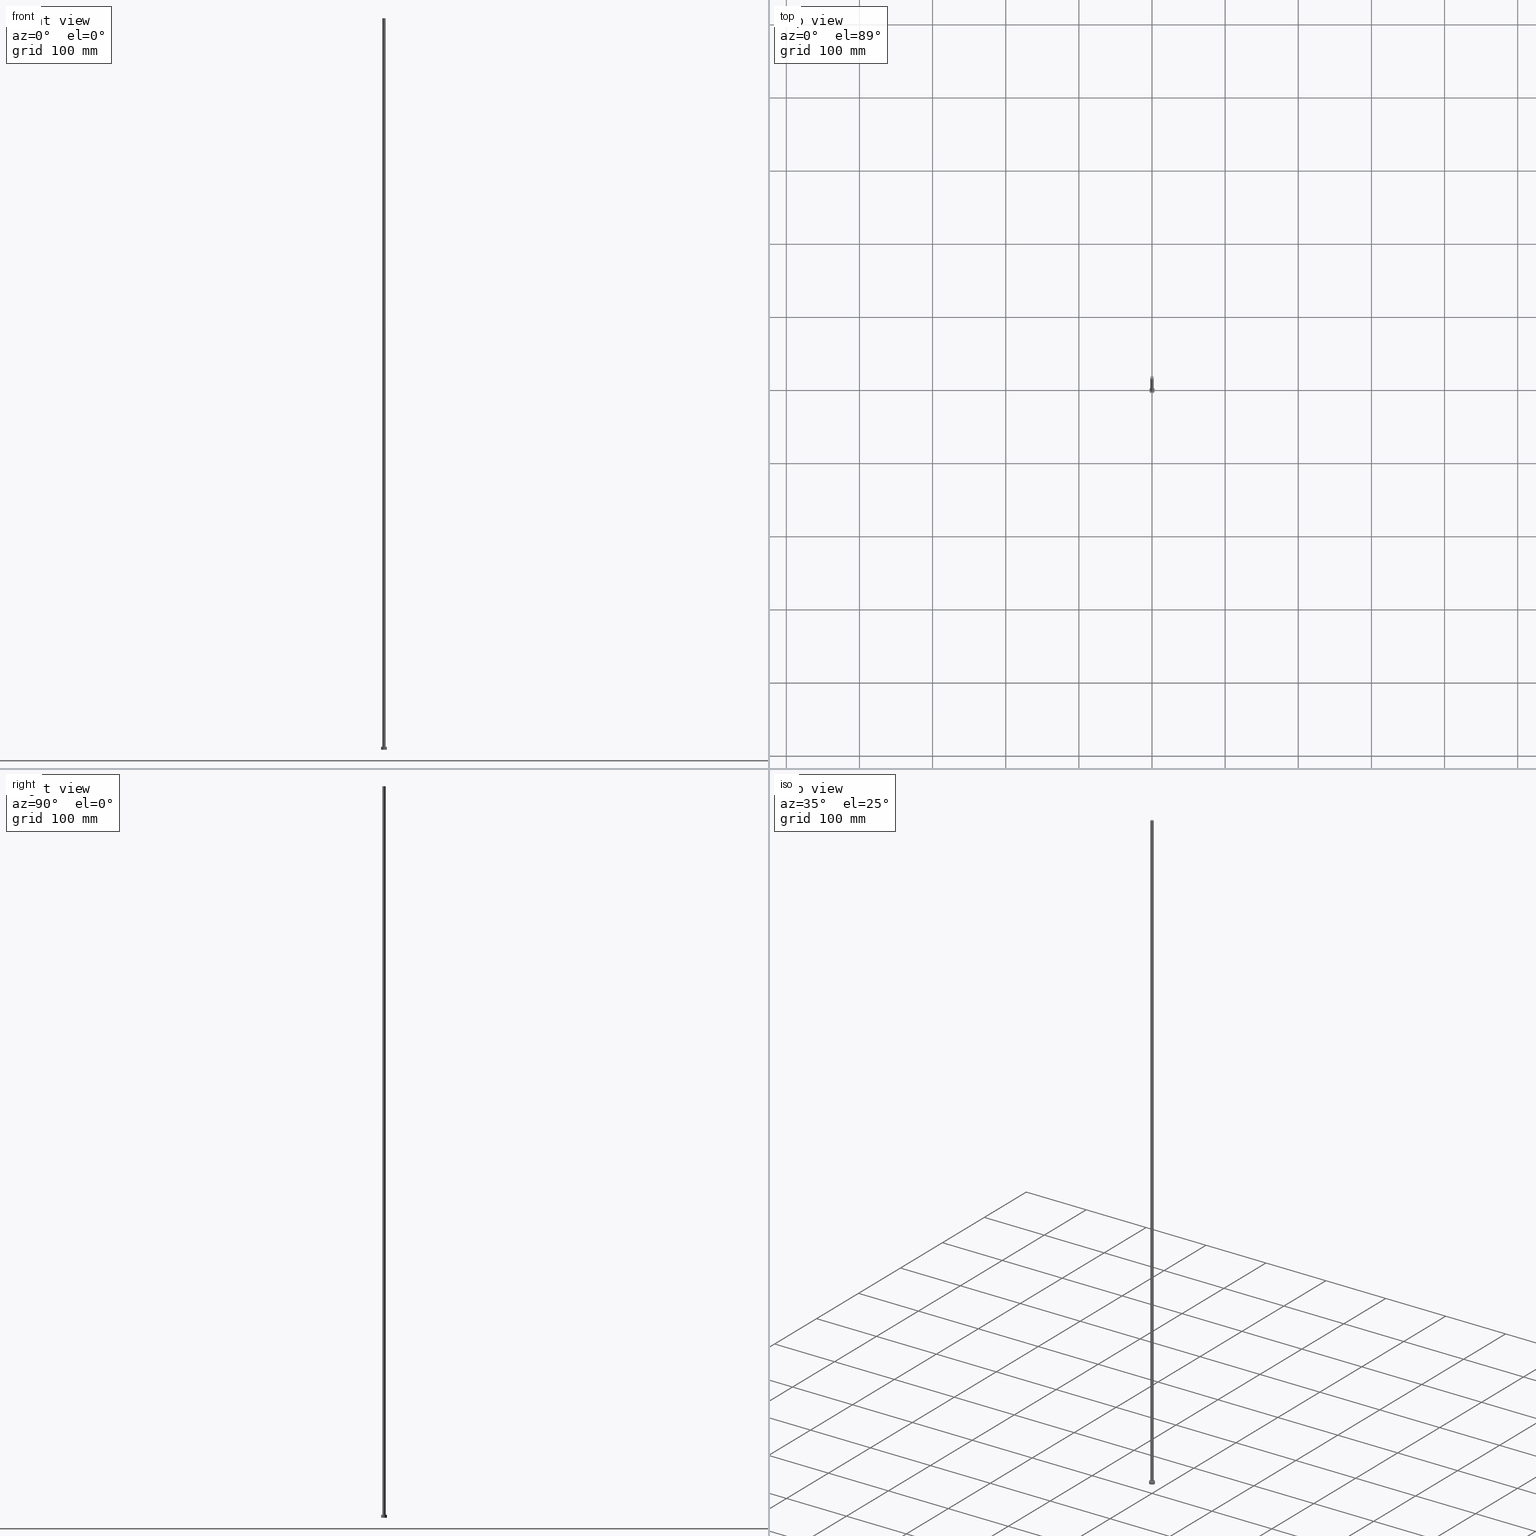
[diagram: canonical four-view strip — front | top / right | iso, engineering-drawing reading convention]
A machine part, canonical four-view strip (front | top / right | iso — engineering-drawing reading convention). The complete STEP part file that produces these views, byte-faithful:
ISO-10303-21;
HEADER;
FILE_DESCRIPTION (( 'STEP AP203' ),
    '1' );
FILE_NAME ('abc7.STEP',
    '2023-02-13T16:18:59',
    ( '' ),
    ( '' ),
    'SwSTEP 2.0',
    'SolidWorks 2019',
    '' );
FILE_SCHEMA (( 'CONFIG_CONTROL_DESIGN' ));
ENDSEC;

DATA;
#1 = DATE_AND_TIME ( #6, #25 ) ;
#2 = EDGE_CURVE ( 'NONE', #199, #222, #225, .T. ) ;
#3 = CARTESIAN_POINT ( 'NONE',  ( 0.000000000000000000, 0.000000000000000000, 0.000000000000000000 ) ) ;
#4 = VECTOR ( 'NONE', #163, 1000.000000000000000 ) ;
#5 = CC_DESIGN_PERSON_AND_ORGANIZATION_ASSIGNMENT ( #229, #10, ( #60 ) ) ;
#6 = CALENDAR_DATE ( 2023, 13, 2 ) ;
#7 = CARTESIAN_POINT ( 'NONE',  ( 2.250000000000000000, 2.755455298081544285E-16, 1000.000000000000000 ) ) ;
#8 = AXIS2_PLACEMENT_3D ( 'NONE', #120, #56, #248 ) ;
#9 = CC_DESIGN_APPROVAL ( #157, ( #187 ) ) ;
#10 = PERSON_AND_ORGANIZATION_ROLE ( 'classification_officer' ) ;
#11 = AXIS2_PLACEMENT_3D ( 'NONE', #154, #245, #156 ) ;
#12 = FACE_OUTER_BOUND ( 'NONE', #75, .T. ) ;
#13 = FACE_OUTER_BOUND ( 'NONE', #91, .T. ) ;
#14 = EDGE_CURVE ( 'NONE', #222, #168, #139, .T. ) ;
#15 = LOCAL_TIME ( 17, 18, 59.00000000000000000, #136 ) ;
#16 = CARTESIAN_POINT ( 'NONE',  ( 0.000000000000000000, 0.000000000000000000, 0.000000000000000000 ) ) ;
#17 = EDGE_CURVE ( 'NONE', #199, #196, #236, .T. ) ;
#18 = DIRECTION ( 'NONE',  ( -1.000000000000000000, 0.000000000000000000, 0.000000000000000000 ) ) ;
#19 = ORIENTED_EDGE ( 'NONE', *, *, #122, .F. ) ;
#20 = CARTESIAN_POINT ( 'NONE',  ( -4.000000000000000000, 0.000000000000000000, 4.000000000000000000 ) ) ;
#21 = DATE_AND_TIME ( #243, #53 ) ;
#22 = CC_DESIGN_DATE_AND_TIME_ASSIGNMENT ( #1, #244, ( #187 ) ) ;
#23 = EDGE_LOOP ( 'NONE', ( #215, #64 ) ) ;
#24 = PLANE ( 'NONE',  #35 ) ;
#25 = LOCAL_TIME ( 17, 18, 59.00000000000000000, #151 ) ;
#26 = CC_DESIGN_DATE_AND_TIME_ASSIGNMENT ( #247, #97, ( #60 ) ) ;
#27 = DIRECTION ( 'NONE',  ( 1.000000000000000000, 0.000000000000000000, 0.000000000000000000 ) ) ;
#28 = DIRECTION ( 'NONE',  ( 0.000000000000000000, 0.000000000000000000, 1.000000000000000000 ) ) ;
#29 = ADVANCED_BREP_SHAPE_REPRESENTATION ( 'abc7', ( #194, #140 ), #81 ) ;
#30 = APPROVAL_DATE_TIME ( #74, #178 ) ;
#31 = FACE_OUTER_BOUND ( 'NONE', #43, .T. ) ;
#32 = FACE_OUTER_BOUND ( 'NONE', #68, .T. ) ;
#33 = AXIS2_PLACEMENT_3D ( 'NONE', #37, #124, #198 ) ;
#34 = EDGE_CURVE ( 'NONE', #184, #238, #71, .T. ) ;
#35 = AXIS2_PLACEMENT_3D ( 'NONE', #107, #131, #220 ) ;
#36 = DIRECTION ( 'NONE',  ( 1.000000000000000000, 0.000000000000000000, 0.000000000000000000 ) ) ;
#37 = CARTESIAN_POINT ( 'NONE',  ( 0.000000000000000000, 0.000000000000000000, 1000.000000000000000 ) ) ;
#38 = PERSON ( 'NEUR�EN�', 'NEUR�EN�', 'NEUR�EN�', ('NEUR�EN�'), ('NEUR�EN�'), ('NEUR�EN�') ) ;
#39 = CYLINDRICAL_SURFACE ( 'NONE', #33, 2.250000000000000000 ) ;
#40 = AXIS2_PLACEMENT_3D ( 'NONE', #123, #79, #99 ) ;
#41 = CC_DESIGN_PERSON_AND_ORGANIZATION_ASSIGNMENT ( #246, #228, ( #174 ) ) ;
#42 = PERSON_AND_ORGANIZATION ( #38, #153 ) ;
#43 = EDGE_LOOP ( 'NONE', ( #19, #149, #92, #147 ) ) ;
#44 = APPROVAL_ROLE ( '' ) ;
#45 = APPLICATION_PROTOCOL_DEFINITION ( 'international standard', 'config_control_design', 1994, #197 ) ;
#46 = CLOSED_SHELL ( 'NONE', ( #214, #93, #82, #101, #98, #76, #242 ) ) ;
#47 = CIRCLE ( 'NONE', #176, 2.250000000000000000 ) ;
#48 = DIRECTION ( 'NONE',  ( 0.000000000000000000, 0.000000000000000000, 1.000000000000000000 ) ) ;
#49 = CARTESIAN_POINT ( 'NONE',  ( 4.000000000000000000, 4.898587196589412829E-16, 0.000000000000000000 ) ) ;
#50 = CARTESIAN_POINT ( 'NONE',  ( 0.000000000000000000, 0.000000000000000000, 0.000000000000000000 ) ) ;
#51 = EDGE_CURVE ( 'NONE', #238, #184, #223, .T. ) ;
#52 = CALENDAR_DATE ( 2023, 13, 2 ) ;
#53 = LOCAL_TIME ( 17, 18, 59.00000000000000000, #204 ) ;
#54 = UNCERTAINTY_MEASURE_WITH_UNIT (LENGTH_MEASURE( 1.000000000000000082E-05 ), #201, 'distance_accuracy_value', 'NONE');
#55 = FACE_BOUND ( 'NONE', #23, .T. ) ;
#56 = DIRECTION ( 'NONE',  ( 0.000000000000000000, 0.000000000000000000, 1.000000000000000000 ) ) ;
#57 = AXIS2_PLACEMENT_3D ( 'NONE', #95, #48, #173 ) ;
#58 = CIRCLE ( 'NONE', #118, 2.250000000000000000 ) ;
#59 = CYLINDRICAL_SURFACE ( 'NONE', #103, 2.250000000000000000 ) ;
#60 = SECURITY_CLASSIFICATION ( '', '', #80 ) ;
#61 = CARTESIAN_POINT ( 'NONE',  ( -4.000000000000000000, 0.000000000000000000, 0.000000000000000000 ) ) ;
#62 = ORIENTED_EDGE ( 'NONE', *, *, #2, .F. ) ;
#63 = LINE ( 'NONE', #20, #180 ) ;
#64 = ORIENTED_EDGE ( 'NONE', *, *, #14, .F. ) ;
#65 = ORIENTED_EDGE ( 'NONE', *, *, #141, .F. ) ;
#66 =( NAMED_UNIT ( * ) PLANE_ANGLE_UNIT ( ) SI_UNIT ( $, .RADIAN. ) );
#67 = ORIENTED_EDGE ( 'NONE', *, *, #17, .T. ) ;
#68 = EDGE_LOOP ( 'NONE', ( #218, #202 ) ) ;
#69 = PERSON_AND_ORGANIZATION_ROLE ( 'creator' ) ;
#70 = EDGE_LOOP ( 'NONE', ( #130, #67 ) ) ;
#71 = CIRCLE ( 'NONE', #192, 4.000000000000000000 ) ;
#72 =( NAMED_UNIT ( * ) SI_UNIT ( $, .STERADIAN. ) SOLID_ANGLE_UNIT ( ) );
#73 = ORIENTED_EDGE ( 'NONE', *, *, #111, .T. ) ;
#74 = DATE_AND_TIME ( #160, #15 ) ;
#75 = EDGE_LOOP ( 'NONE', ( #62, #86, #191, #145 ) ) ;
#76 = ADVANCED_FACE ( 'NONE', ( #12 ), #59, .T. ) ;
#77 = PERSON_AND_ORGANIZATION ( #38, #153 ) ;
#78 = APPROVAL_STATUS ( 'not_yet_approved' ) ;
#79 = DIRECTION ( 'NONE',  ( 0.000000000000000000, 0.000000000000000000, 1.000000000000000000 ) ) ;
#80 = SECURITY_CLASSIFICATION_LEVEL ( 'unclassified' ) ;
#81 =( GEOMETRIC_REPRESENTATION_CONTEXT ( 3 ) GLOBAL_UNCERTAINTY_ASSIGNED_CONTEXT ( ( #54 ) ) GLOBAL_UNIT_ASSIGNED_CONTEXT ( ( #201, #66, #72 ) ) REPRESENTATION_CONTEXT ( 'NONE', 'WORKASPACE' ) );
#82 = ADVANCED_FACE ( 'NONE', ( #102 ), #158, .T. ) ;
#83 = DIRECTION ( 'NONE',  ( 0.000000000000000000, 0.000000000000000000, 1.000000000000000000 ) ) ;
#84 = PRODUCT ( 'abc7', 'abc7', '', ( #89 ) ) ;
#85 = DIRECTION ( 'NONE',  ( 0.000000000000000000, 0.000000000000000000, 1.000000000000000000 ) ) ;
#86 = ORIENTED_EDGE ( 'NONE', *, *, #234, .F. ) ;
#87 = CARTESIAN_POINT ( 'NONE',  ( 4.000000000000000000, 4.898587196589412829E-16, 4.000000000000000000 ) ) ;
#88 = VERTEX_POINT ( 'NONE', #235 ) ;
#89 = MECHANICAL_CONTEXT ( 'NONE', #197, 'mechanical' ) ;
#90 = PERSON_AND_ORGANIZATION ( #38, #153 ) ;
#91 = EDGE_LOOP ( 'NONE', ( #73, #203 ) ) ;
#92 = ORIENTED_EDGE ( 'NONE', *, *, #51, .T. ) ;
#93 = ADVANCED_FACE ( 'NONE', ( #31 ), #142, .T. ) ;
#94 = PERSON_AND_ORGANIZATION ( #38, #153 ) ;
#95 = CARTESIAN_POINT ( 'NONE',  ( 0.000000000000000000, 0.000000000000000000, 4.000000000000000000 ) ) ;
#96 = APPROVAL_ROLE ( '' ) ;
#97 = DATE_TIME_ROLE ( 'classification_date' ) ;
#98 = ADVANCED_FACE ( 'NONE', ( #32 ), #193, .F. ) ;
#99 = DIRECTION ( 'NONE',  ( 1.000000000000000000, 0.000000000000000000, -0.000000000000000000 ) ) ;
#100 = AXIS2_PLACEMENT_3D ( 'NONE', #182, #159, #232 ) ;
#101 = ADVANCED_FACE ( 'NONE', ( #55, #13 ), #181, .T. ) ;
#102 = FACE_OUTER_BOUND ( 'NONE', #170, .T. ) ;
#103 = AXIS2_PLACEMENT_3D ( 'NONE', #165, #209, #18 ) ;
#104 = CARTESIAN_POINT ( 'NONE',  ( 0.000000000000000000, 0.000000000000000000, 4.000000000000000000 ) ) ;
#105 = APPROVAL_DATE_TIME ( #21, #157 ) ;
#106 = VERTEX_POINT ( 'NONE', #87 ) ;
#107 = CARTESIAN_POINT ( 'NONE',  ( 0.000000000000000000, 0.000000000000000000, 1000.000000000000000 ) ) ;
#108 = ORIENTED_EDGE ( 'NONE', *, *, #34, .T. ) ;
#109 = AXIS2_PLACEMENT_3D ( 'NONE', #200, #85, #179 ) ;
#110 = DIRECTION ( 'NONE',  ( 1.000000000000000000, 0.000000000000000000, 0.000000000000000000 ) ) ;
#111 = EDGE_CURVE ( 'NONE', #88, #106, #190, .T. ) ;
#112 = COORDINATED_UNIVERSAL_TIME_OFFSET ( 1, 0, .AHEAD. ) ;
#113 = CC_DESIGN_APPROVAL ( #178, ( #60 ) ) ;
#114 = APPROVAL_DATE_TIME ( #166, #227 ) ;
#115 = DIRECTION ( 'NONE',  ( -1.000000000000000000, 0.000000000000000000, 0.000000000000000000 ) ) ;
#116 = CC_DESIGN_PERSON_AND_ORGANIZATION_ASSIGNMENT ( #94, #148, ( #84 ) ) ;
#117 = AXIS2_PLACEMENT_3D ( 'NONE', #16, #252, #36 ) ;
#118 = AXIS2_PLACEMENT_3D ( 'NONE', #224, #169, #186 ) ;
#119 = APPROVAL_PERSON_ORGANIZATION ( #77, #178, #96 ) ;
#120 = CARTESIAN_POINT ( 'NONE',  ( 0.000000000000000000, 0.000000000000000000, 0.000000000000000000 ) ) ;
#121 = DESIGN_CONTEXT ( 'detailed design', #135, 'design' ) ;
#122 = EDGE_CURVE ( 'NONE', #106, #88, #226, .T. ) ;
#123 = CARTESIAN_POINT ( 'NONE',  ( 0.000000000000000000, 0.000000000000000000, 4.000000000000000000 ) ) ;
#124 = DIRECTION ( 'NONE',  ( -0.000000000000000000, -0.000000000000000000, -1.000000000000000000 ) ) ;
#125 = AXIS2_PLACEMENT_3D ( 'NONE', #104, #137, #237 ) ;
#126 = LINE ( 'NONE', #251, #4 ) ;
#127 = LOCAL_TIME ( 17, 18, 59.00000000000000000, #112 ) ;
#128 = FACE_OUTER_BOUND ( 'NONE', #70, .T. ) ;
#129 = ORIENTED_EDGE ( 'NONE', *, *, #111, .F. ) ;
#130 = ORIENTED_EDGE ( 'NONE', *, *, #234, .T. ) ;
#131 = DIRECTION ( 'NONE',  ( 0.000000000000000000, 0.000000000000000000, 1.000000000000000000 ) ) ;
#132 = VECTOR ( 'NONE', #175, 1000.000000000000000 ) ;
#133 = DIRECTION ( 'NONE',  ( 0.000000000000000000, 0.000000000000000000, 1.000000000000000000 ) ) ;
#134 = APPROVAL_ROLE ( '' ) ;
#135 = APPLICATION_CONTEXT ( 'configuration controlled 3d designs of mechanical parts and assemblies' ) ;
#136 = COORDINATED_UNIVERSAL_TIME_OFFSET ( 1, 0, .AHEAD. ) ;
#137 = DIRECTION ( 'NONE',  ( -0.000000000000000000, -0.000000000000000000, -1.000000000000000000 ) ) ;
#138 = CARTESIAN_POINT ( 'NONE',  ( 0.000000000000000000, 0.000000000000000000, 4.000000000000000000 ) ) ;
#139 = CIRCLE ( 'NONE', #57, 2.250000000000000000 ) ;
#140 = AXIS2_PLACEMENT_3D ( 'NONE', #3, #28, #27 ) ;
#141 = EDGE_CURVE ( 'NONE', #196, #168, #195, .T. ) ;
#142 = CYLINDRICAL_SURFACE ( 'NONE', #162, 4.000000000000000000 ) ;
#143 = VECTOR ( 'NONE', #239, 1000.000000000000000 ) ;
#144 = CARTESIAN_POINT ( 'NONE',  ( -2.250000000000000000, 0.000000000000000000, 1000.000000000000000 ) ) ;
#145 = ORIENTED_EDGE ( 'NONE', *, *, #231, .T. ) ;
#146 = DIRECTION ( 'NONE',  ( 1.000000000000000000, 0.000000000000000000, 0.000000000000000000 ) ) ;
#147 = ORIENTED_EDGE ( 'NONE', *, *, #221, .F. ) ;
#148 = PERSON_AND_ORGANIZATION_ROLE ( 'design_owner' ) ;
#149 = ORIENTED_EDGE ( 'NONE', *, *, #161, .T. ) ;
#150 = ORIENTED_EDGE ( 'NONE', *, *, #17, .F. ) ;
#151 = COORDINATED_UNIVERSAL_TIME_OFFSET ( 1, 0, .AHEAD. ) ;
#152 = ORIENTED_EDGE ( 'NONE', *, *, #14, .T. ) ;
#153 = ORGANIZATION ( 'NEUR�EN�', 'NEUR�EN�', '' ) ;
#154 = CARTESIAN_POINT ( 'NONE',  ( 0.000000000000000000, 0.000000000000000000, 1000.000000000000000 ) ) ;
#155 = PERSON_AND_ORGANIZATION ( #38, #153 ) ;
#156 = DIRECTION ( 'NONE',  ( 1.000000000000000000, 0.000000000000000000, 0.000000000000000000 ) ) ;
#157 = APPROVAL ( #188, 'NEUR�EN�' ) ;
#158 = CYLINDRICAL_SURFACE ( 'NONE', #125, 4.000000000000000000 ) ;
#159 = DIRECTION ( 'NONE',  ( 0.000000000000000000, 0.000000000000000000, 1.000000000000000000 ) ) ;
#160 = CALENDAR_DATE ( 2023, 13, 2 ) ;
#161 = EDGE_CURVE ( 'NONE', #106, #238, #126, .T. ) ;
#162 = AXIS2_PLACEMENT_3D ( 'NONE', #138, #177, #115 ) ;
#163 = DIRECTION ( 'NONE',  ( -0.000000000000000000, -0.000000000000000000, -1.000000000000000000 ) ) ;
#164 = CARTESIAN_POINT ( 'NONE',  ( -2.250000000000000000, 0.000000000000000000, 4.000000000000000000 ) ) ;
#165 = CARTESIAN_POINT ( 'NONE',  ( 0.000000000000000000, 0.000000000000000000, 1000.000000000000000 ) ) ;
#166 = DATE_AND_TIME ( #189, #127 ) ;
#167 = APPROVAL_STATUS ( 'not_yet_approved' ) ;
#168 = VERTEX_POINT ( 'NONE', #164 ) ;
#169 = DIRECTION ( 'NONE',  ( 0.000000000000000000, 0.000000000000000000, 1.000000000000000000 ) ) ;
#170 = EDGE_LOOP ( 'NONE', ( #255, #129, #240, #108 ) ) ;
#171 = APPLICATION_PROTOCOL_DEFINITION ( 'international standard', 'config_control_design', 1994, #135 ) ;
#172 = PERSON_AND_ORGANIZATION ( #38, #153 ) ;
#173 = DIRECTION ( 'NONE',  ( 1.000000000000000000, 0.000000000000000000, 0.000000000000000000 ) ) ;
#174 = PRODUCT_DEFINITION_FORMATION_WITH_SPECIFIED_SOURCE ( 'LIBOVOLN�', '', #84, .NOT_KNOWN. ) ;
#175 = DIRECTION ( 'NONE',  ( -0.000000000000000000, -0.000000000000000000, -1.000000000000000000 ) ) ;
#176 = AXIS2_PLACEMENT_3D ( 'NONE', #230, #133, #110 ) ;
#177 = DIRECTION ( 'NONE',  ( -0.000000000000000000, -0.000000000000000000, -1.000000000000000000 ) ) ;
#178 = APPROVAL ( #78, 'NEUR�EN�' ) ;
#179 = DIRECTION ( 'NONE',  ( 1.000000000000000000, 0.000000000000000000, 0.000000000000000000 ) ) ;
#180 = VECTOR ( 'NONE', #185, 1000.000000000000000 ) ;
#181 = PLANE ( 'NONE',  #40 ) ;
#182 = CARTESIAN_POINT ( 'NONE',  ( 0.000000000000000000, 0.000000000000000000, 4.000000000000000000 ) ) ;
#183 = APPROVAL_PERSON_ORGANIZATION ( #42, #157, #44 ) ;
#184 = VERTEX_POINT ( 'NONE', #61 ) ;
#185 = DIRECTION ( 'NONE',  ( -0.000000000000000000, -0.000000000000000000, -1.000000000000000000 ) ) ;
#186 = DIRECTION ( 'NONE',  ( 1.000000000000000000, 0.000000000000000000, 0.000000000000000000 ) ) ;
#187 = PRODUCT_DEFINITION ( 'NEZN�M�', '', #174, #121 ) ;
#188 = APPROVAL_STATUS ( 'not_yet_approved' ) ;
#189 = CALENDAR_DATE ( 2023, 13, 2 ) ;
#190 = CIRCLE ( 'NONE', #100, 4.000000000000000000 ) ;
#191 = ORIENTED_EDGE ( 'NONE', *, *, #141, .T. ) ;
#192 = AXIS2_PLACEMENT_3D ( 'NONE', #50, #83, #146 ) ;
#193 = PLANE ( 'NONE',  #8 ) ;
#194 = MANIFOLD_SOLID_BREP ( 'P�idat vysunut�m3', #46 ) ;
#195 = LINE ( 'NONE', #253, #143 ) ;
#196 = VERTEX_POINT ( 'NONE', #144 ) ;
#197 = APPLICATION_CONTEXT ( 'configuration controlled 3d designs of mechanical parts and assemblies' ) ;
#198 = DIRECTION ( 'NONE',  ( -1.000000000000000000, 0.000000000000000000, 0.000000000000000000 ) ) ;
#199 = VERTEX_POINT ( 'NONE', #213 ) ;
#200 = CARTESIAN_POINT ( 'NONE',  ( 0.000000000000000000, 0.000000000000000000, 4.000000000000000000 ) ) ;
#201 =( LENGTH_UNIT ( ) NAMED_UNIT ( * ) SI_UNIT ( .MILLI., .METRE. ) );
#202 = ORIENTED_EDGE ( 'NONE', *, *, #51, .F. ) ;
#203 = ORIENTED_EDGE ( 'NONE', *, *, #122, .T. ) ;
#204 = COORDINATED_UNIVERSAL_TIME_OFFSET ( 1, 0, .AHEAD. ) ;
#205 = PRODUCT_RELATED_PRODUCT_CATEGORY ( 'detail', '', ( #84 ) ) ;
#206 = CC_DESIGN_SECURITY_CLASSIFICATION ( #60, ( #174 ) ) ;
#207 = COORDINATED_UNIVERSAL_TIME_OFFSET ( 1, 0, .AHEAD. ) ;
#208 = PERSON_AND_ORGANIZATION_ROLE ( 'design_supplier' ) ;
#209 = DIRECTION ( 'NONE',  ( -0.000000000000000000, -0.000000000000000000, -1.000000000000000000 ) ) ;
#210 = CC_DESIGN_PERSON_AND_ORGANIZATION_ASSIGNMENT ( #172, #69, ( #187 ) ) ;
#211 = PRODUCT_DEFINITION_SHAPE ( 'NONE', 'NONE',  #187 ) ;
#212 = CC_DESIGN_APPROVAL ( #227, ( #174 ) ) ;
#213 = CARTESIAN_POINT ( 'NONE',  ( 2.250000000000000000, 2.755455298081544285E-16, 1000.000000000000000 ) ) ;
#214 = ADVANCED_FACE ( 'NONE', ( #216 ), #39, .T. ) ;
#215 = ORIENTED_EDGE ( 'NONE', *, *, #231, .F. ) ;
#216 = FACE_OUTER_BOUND ( 'NONE', #219, .T. ) ;
#217 = LOCAL_TIME ( 17, 18, 59.00000000000000000, #207 ) ;
#218 = ORIENTED_EDGE ( 'NONE', *, *, #34, .F. ) ;
#219 = EDGE_LOOP ( 'NONE', ( #150, #241, #152, #65 ) ) ;
#220 = DIRECTION ( 'NONE',  ( 1.000000000000000000, 0.000000000000000000, -0.000000000000000000 ) ) ;
#221 = EDGE_CURVE ( 'NONE', #88, #184, #63, .T. ) ;
#222 = VERTEX_POINT ( 'NONE', #254 ) ;
#223 = CIRCLE ( 'NONE', #117, 4.000000000000000000 ) ;
#224 = CARTESIAN_POINT ( 'NONE',  ( 0.000000000000000000, 0.000000000000000000, 1000.000000000000000 ) ) ;
#225 = LINE ( 'NONE', #7, #132 ) ;
#226 = CIRCLE ( 'NONE', #109, 4.000000000000000000 ) ;
#227 = APPROVAL ( #167, 'NEUR�EN�' ) ;
#228 = PERSON_AND_ORGANIZATION_ROLE ( 'creator' ) ;
#229 = PERSON_AND_ORGANIZATION ( #38, #153 ) ;
#230 = CARTESIAN_POINT ( 'NONE',  ( 0.000000000000000000, 0.000000000000000000, 4.000000000000000000 ) ) ;
#231 = EDGE_CURVE ( 'NONE', #168, #222, #47, .T. ) ;
#232 = DIRECTION ( 'NONE',  ( 1.000000000000000000, 0.000000000000000000, 0.000000000000000000 ) ) ;
#233 = APPROVAL_PERSON_ORGANIZATION ( #90, #227, #134 ) ;
#234 = EDGE_CURVE ( 'NONE', #196, #199, #58, .T. ) ;
#235 = CARTESIAN_POINT ( 'NONE',  ( -4.000000000000000000, 0.000000000000000000, 4.000000000000000000 ) ) ;
#236 = CIRCLE ( 'NONE', #11, 2.250000000000000000 ) ;
#237 = DIRECTION ( 'NONE',  ( -1.000000000000000000, 0.000000000000000000, 0.000000000000000000 ) ) ;
#238 = VERTEX_POINT ( 'NONE', #49 ) ;
#239 = DIRECTION ( 'NONE',  ( -0.000000000000000000, -0.000000000000000000, -1.000000000000000000 ) ) ;
#240 = ORIENTED_EDGE ( 'NONE', *, *, #221, .T. ) ;
#241 = ORIENTED_EDGE ( 'NONE', *, *, #2, .T. ) ;
#242 = ADVANCED_FACE ( 'NONE', ( #128 ), #24, .T. ) ;
#243 = CALENDAR_DATE ( 2023, 13, 2 ) ;
#244 = DATE_TIME_ROLE ( 'creation_date' ) ;
#245 = DIRECTION ( 'NONE',  ( 0.000000000000000000, 0.000000000000000000, 1.000000000000000000 ) ) ;
#246 = PERSON_AND_ORGANIZATION ( #38, #153 ) ;
#247 = DATE_AND_TIME ( #52, #217 ) ;
#248 = DIRECTION ( 'NONE',  ( 1.000000000000000000, 0.000000000000000000, -0.000000000000000000 ) ) ;
#249 = SHAPE_DEFINITION_REPRESENTATION ( #211, #29 ) ;
#250 = CC_DESIGN_PERSON_AND_ORGANIZATION_ASSIGNMENT ( #155, #208, ( #174 ) ) ;
#251 = CARTESIAN_POINT ( 'NONE',  ( 4.000000000000000000, 4.898587196589412829E-16, 4.000000000000000000 ) ) ;
#252 = DIRECTION ( 'NONE',  ( 0.000000000000000000, 0.000000000000000000, 1.000000000000000000 ) ) ;
#253 = CARTESIAN_POINT ( 'NONE',  ( -2.250000000000000000, 0.000000000000000000, 1000.000000000000000 ) ) ;
#254 = CARTESIAN_POINT ( 'NONE',  ( 2.250000000000000000, 2.755455298081544285E-16, 4.000000000000000000 ) ) ;
#255 = ORIENTED_EDGE ( 'NONE', *, *, #161, .F. ) ;
ENDSEC;
END-ISO-10303-21;
